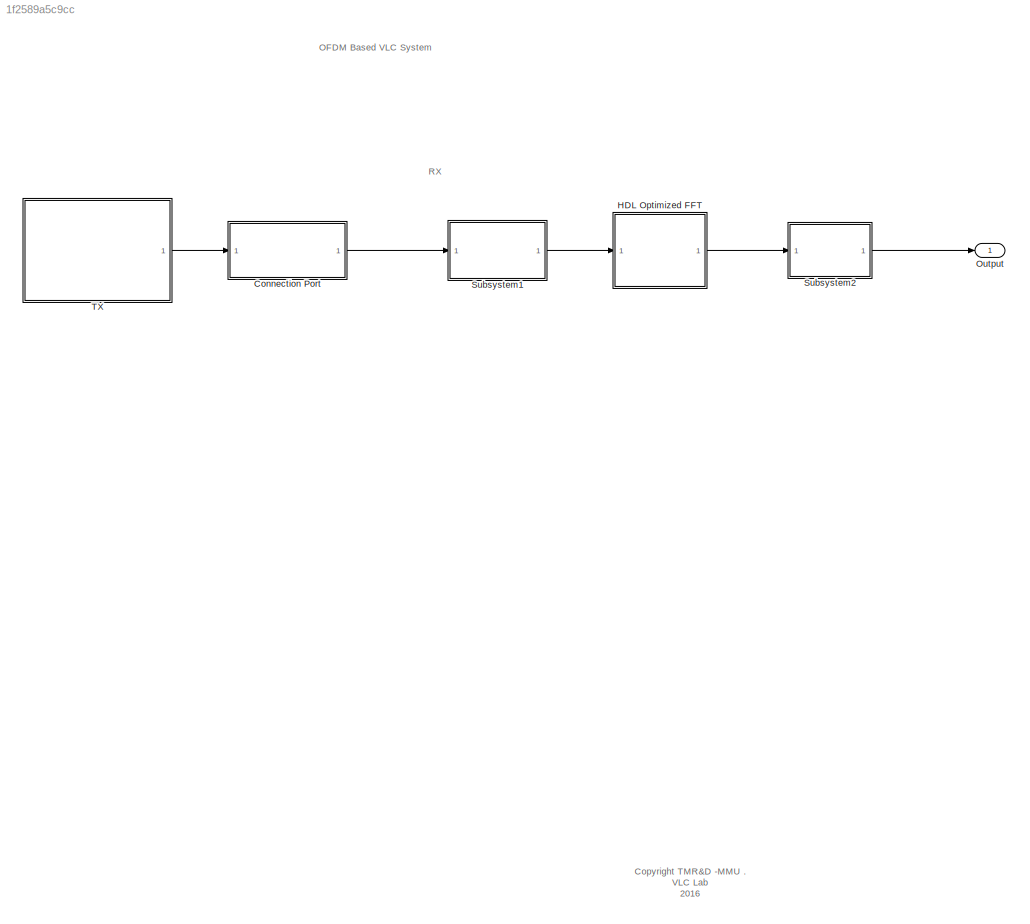
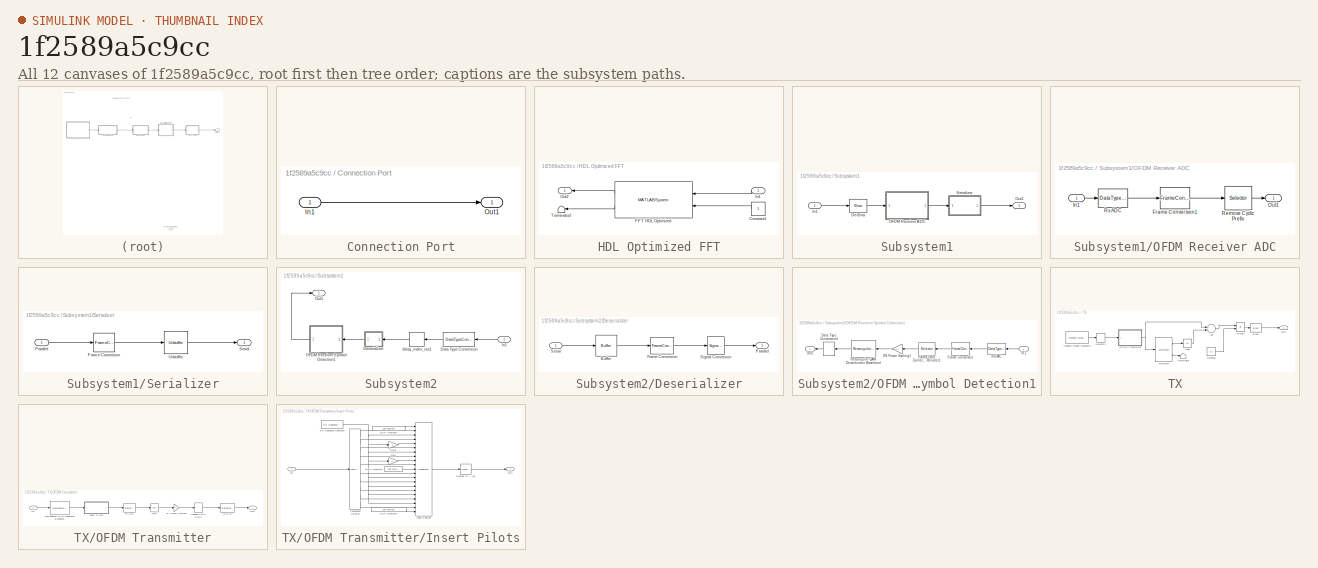
[diagram: thumbnail index - all 12 canvases of the model, root first then tree order]
MODEL slx_1f2589a5c9cc
KIND model
CONFIG AbsTol = auto
CONFIG FixedStep = auto
CONFIG InitFcn = wordLength = 13;\nfracLength  = 6;
CONFIG MaxStep = auto
CONFIG MinStep = auto
CONFIG RelTol = 1e-3
CONFIG SampleTimeConstraint = Unconstrained
CONFIG Solver = FixedStepDiscrete
CONFIG SolverMode = SingleTasking
CONFIG SolverName = FixedStepDiscrete
CONFIG StartTime = 0.0
CONFIG StopTime = 1024
BLOCK [SubSystem] Connection Port
  Ports = [1, 1]
  RequestExecContextInheritance = off
  ShowPortLabels = none
  TreatAsAtomicUnit = on
  Variant = off
BLOCK [Inport] Connection Port/In1
  IconDisplay = Port number
BLOCK [Outport] Connection Port/Out1
  IconDisplay = Port number
BLOCK [SubSystem] HDL Optimized FFT
  Ports = [1, 1]
  RequestExecContextInheritance = off
  ShowPortLabels = none
  Variant = off
BLOCK [Constant] HDL Optimized FFT/Constant1
  OutDataTypeStr = boolean
  SampleTime = 1
BLOCK [MATLABSystem] HDL Optimized FFT/FFT HDL Optimized
  BitReversedOutput = off
  EndOutputPort = off
  FFTLength = 512
  FFTLengthSource = Property
  MaskCapabilities = dspmaskedcaps(gcbh)
  MaskDisplay = disp(['FFT' char(10) 'HDL Optimized' char(10) 'Latency = 1077']);\nport_label('input',1,'dataIn');\nport_label('input',2,'validIn');\nport_label('output',1,'dataOut');\nport_label('output',2,'validOut');
  MaskType = FFT HDL Optimized
  Normalize = off
  OverflowAction = Saturate
  Ports = [2, 2]
  ResetInputPort = off
  RoundingMethod = Floor
  SimulateUsing = Code generation
  StartOutputPort = off
  System = dsp.HDLFFT
  ValidInputPort = on
BLOCK [Inport] HDL Optimized FFT/In1
  IconDisplay = Port number
BLOCK [Outport] HDL Optimized FFT/Out2
  IconDisplay = Port number
BLOCK [Terminator] HDL Optimized FFT/Terminator2
BLOCK [Outport] Output 
  IconDisplay = Port number
BLOCK [SubSystem] Subsystem1
  Ports = [1, 1]
  RequestExecContextInheritance = off
  ShowPortLabels = none
  Variant = off
BLOCK [Bias] Subsystem1/De-Bias
  Bias = -1
  SaturateOnIntegerOverflow = off
BLOCK [Inport] Subsystem1/In1
  IconDisplay = Port number
BLOCK [SubSystem] Subsystem1/OFDM Receiver ADC
  Ports = [1, 1]
  RequestExecContextInheritance = off
  Variant = off
BLOCK [FrameConversion] Subsystem1/OFDM Receiver ADC/Frame Conversion1
  InheritSamplingMode = off
  OutFrame = Sample-based
  Ports = [1, 1]
BLOCK [Inport] Subsystem1/OFDM Receiver ADC/In1
  IconDisplay = Port number
BLOCK [Outport] Subsystem1/OFDM Receiver ADC/Out1
  IconDisplay = Port number
BLOCK [Selector] Subsystem1/OFDM Receiver ADC/Remove Cyclic Prefix
  IndexOptions = Index vector (dialog),Select all
  Indices = [33:544],1
  InputPortWidth = 80
  NumberOfDimensions = 2
  OutputSizes = 1,1
  Ports = [1, 1]
BLOCK [DataTypeConversion] Subsystem1/OFDM Receiver ADC/Rx ADC
  OutDataTypeStr = fixdt(1,wordLength,fracLength)
  RndMeth = Floor
  SaturateOnIntegerOverflow = off
BLOCK [Outport] Subsystem1/Out1
  IconDisplay = Port number
BLOCK [SubSystem] Subsystem1/Serializer
  Ports = [1, 1]
  RequestExecContextInheritance = off
  Variant = off
BLOCK [FrameConversion] Subsystem1/Serializer/Frame Conversion
  InheritSamplingMode = off
  Ports = [1, 1]
BLOCK [Inport] Subsystem1/Serializer/Parallel
  IconDisplay = Port number
BLOCK [Outport] Subsystem1/Serializer/Serial
  IconDisplay = Port number
BLOCK [Unbuffer] Subsystem1/Serializer/Unbuffer
  Ports = [1, 1]
  SampleBasedProcessing = Same as frame based
BLOCK [SubSystem] Subsystem2
  Ports = [1, 1]
  RequestExecContextInheritance = off
  ShowPortLabels = none
  Variant = off
BLOCK [DataTypeConversion] Subsystem2/Data Type Conversion
  OutDataTypeStr = fixdt(1,wordLength,fracLength)
  RndMeth = Floor
  SaturateOnIntegerOverflow = off
BLOCK [SubSystem] Subsystem2/Deserializer
  Ports = [1, 1]
  RequestExecContextInheritance = off
  Variant = off
BLOCK [Buffer] Subsystem2/Deserializer/Buffer
  N = N
  TreatMby1Signals = One channel
BLOCK [FrameConversion] Subsystem2/Deserializer/Frame Conversion
  InheritSamplingMode = off
  OutFrame = Sample-based
  Ports = [1, 1]
BLOCK [Outport] Subsystem2/Deserializer/Parallel
  IconDisplay = Port number
BLOCK [Inport] Subsystem2/Deserializer/Serial
  IconDisplay = Port number
BLOCK [SignalConversion] Subsystem2/Deserializer/Signal Conversion
  ConversionOutput = Contiguous copy
BLOCK [Inport] Subsystem2/In1
  IconDisplay = Port number
BLOCK [SubSystem] Subsystem2/OFDM Receiver Symbol Detection1
  Ports = [1, 1]
  RequestExecContextInheritance = off
  Variant = off
BLOCK [DataTypeConversion] Subsystem2/OFDM Receiver Symbol Detection1/Data Type Conversion4
  OutDataTypeStr = uint8
  RndMeth = Floor
  SaturateOnIntegerOverflow = off
BLOCK [Selector] Subsystem2/OFDM Receiver Symbol Detection1/Extract Data Carriers and Reorder1
  IndexOptions = Index vector (dialog)
  Indices = [317:340 342:389 391:438 440:487 489:512 2:25 27:74 76:123 125:172 174:197]
  InputPortWidth = 512
  OutputSizes = 1
  Ports = [1, 1]
BLOCK [FrameConversion] Subsystem2/OFDM Receiver Symbol Detection1/Frame Conversion
  InheritSamplingMode = off
  Ports = [1, 1]
BLOCK [Inport] Subsystem2/OFDM Receiver Symbol Detection1/In1
  IconDisplay = Port number
BLOCK [Outport] Subsystem2/OFDM Receiver Symbol Detection1/Out1
  IconDisplay = Port number
BLOCK [Gain] Subsystem2/OFDM Receiver Symbol Detection1/RX Power Scaling1
  Gain = 1/4
  OutDataTypeStr = Inherit: Inherit via internal rule
  ParamDataTypeStr = Inherit: Inherit via internal rule
  SaturateOnIntegerOverflow = off
BLOCK [Reference] Subsystem2/OFDM Receiver Symbol Detection1/Rectangular QAM Demodulator Baseband  REF=commdigbbndam3/Rectangular QAM
Demodulator
Baseband
  Ports = [1, 1]
  SourceBlock = commdigbbndam3/Rectangular QAM\nDemodulator\nBaseband
  SourceType = Rectangular QAM Demodulator Baseband
BLOCK [DataTypeConversion] Subsystem2/OFDM Receiver Symbol Detection1/Rx DAC
  OutDataTypeStr = double
  RndMeth = Floor
  SaturateOnIntegerOverflow = off
BLOCK [Outport] Subsystem2/Out1
  IconDisplay = Port number
BLOCK [Delay] Subsystem2/delay_index_out1
  DelayLength = 459
  InputPortMap = u0
  InputProcessing = Inherited
  Ports = [1, 1]
  UserDataPersistent = on
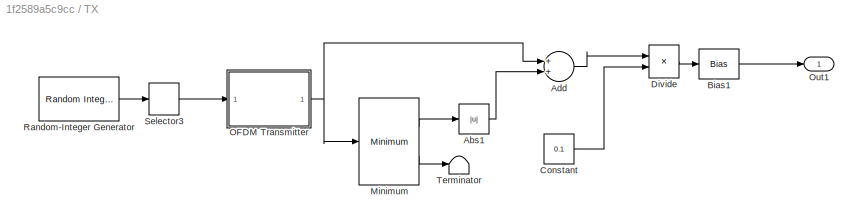
BLOCK [SubSystem] TX
  Ports = [0, 1]
  RequestExecContextInheritance = off
  ShowPortLabels = none
  Variant = off
BLOCK [Abs] TX/Abs1
  SaturateOnIntegerOverflow = off
BLOCK [Sum] TX/Add
  InputSameDT = off
  OutDataTypeStr = Inherit: Inherit via internal rule
  Ports = [2, 1]
  SaturateOnIntegerOverflow = off
BLOCK [Bias] TX/Bias1
  Bias = 0.3
  SaturateOnIntegerOverflow = off
BLOCK [Constant] TX/Constant
  SampleTime = -1
  Value = 0.1
  VectorParams1D = off
BLOCK [Product] TX/Divide
  InputSameDT = off
  OutDataTypeStr = Inherit: Inherit via internal rule
  Ports = [2, 1]
  SaturateOnIntegerOverflow = off
BLOCK [Reference] TX/Minimum  REF=dspstat3/Minimum
  Ports = [1, 2]
  SourceBlock = dspstat3/Minimum
  SourceType = Minimum
  UserDataPersistent = on
BLOCK [SubSystem] TX/OFDM Transmitter
  Ports = [1, 1]
  RequestExecContextInheritance = off
  Variant = off
BLOCK [Selector] TX/OFDM Transmitter/Append Cyclic Prefix
  IndexOptions = Index vector (dialog),Select all
  Indices = [481:512 1:512],1
  InputPortWidth = 256
  NumberOfDimensions = 2
  OutputSizes = 1,1
  Ports = [1, 1]
BLOCK [Reference] TX/OFDM Transmitter/IFFT  REF=dspxfrm3/IFFT
  Ports = [1, 1]
  SourceBlock = dspxfrm3/IFFT
  SourceType = IFFT
BLOCK [Inport] TX/OFDM Transmitter/In1
  IconDisplay = Port number
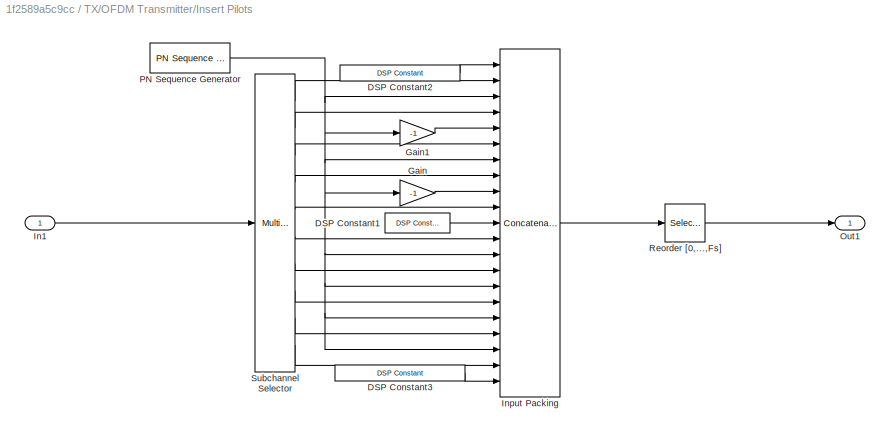
BLOCK [SubSystem] TX/OFDM Transmitter/Insert Pilots
  Ports = [1, 1]
  RequestExecContextInheritance = off
  Variant = off
BLOCK [Reference] TX/OFDM Transmitter/Insert Pilots/DSP Constant1  REF=dspobslib/DSP
Constant
  Ports = [0, 1]
  SourceBlock = dspobslib/DSP\nConstant
  SourceType = DSP Constant
BLOCK [Reference] TX/OFDM Transmitter/Insert Pilots/DSP Constant2  REF=dspobslib/DSP
Constant
  Ports = [0, 1]
  SourceBlock = dspobslib/DSP\nConstant
  SourceType = DSP Constant
BLOCK [Reference] TX/OFDM Transmitter/Insert Pilots/DSP Constant3  REF=dspobslib/DSP
Constant
  Ports = [0, 1]
  SourceBlock = dspobslib/DSP\nConstant
  SourceType = DSP Constant
BLOCK [Gain] TX/OFDM Transmitter/Insert Pilots/Gain
  Gain = -1
  OutDataTypeStr = Inherit: Inherit via internal rule
  ParamDataTypeStr = Inherit: Inherit via internal rule
  SaturateOnIntegerOverflow = off
BLOCK [Gain] TX/OFDM Transmitter/Insert Pilots/Gain1
  Gain = -1
  OutDataTypeStr = Inherit: Inherit via internal rule
  ParamDataTypeStr = Inherit: Inherit via internal rule
  SaturateOnIntegerOverflow = off
BLOCK [Inport] TX/OFDM Transmitter/Insert Pilots/In1
  IconDisplay = Port number
BLOCK [Concatenate] TX/OFDM Transmitter/Insert Pilots/Input Packing
  Mode = Multidimensional array
  NumInputs = 21
  Ports = [21, 1]
BLOCK [Outport] TX/OFDM Transmitter/Insert Pilots/Out1
  IconDisplay = Port number
BLOCK [Reference] TX/OFDM Transmitter/Insert Pilots/PN Sequence Generator  REF=commseqgen2/PN Sequence
Generator
  Ports = [0, 1]
  SourceBlock = commseqgen2/PN Sequence\nGenerator
  SourceType = PN Sequence Generator
BLOCK [Selector] TX/OFDM Transmitter/Insert Pilots/Reorder [0,...,Fs]
  IndexOptions = Index vector (dialog),Select all
  Indices = [257:512 1:256],1
  InputPortWidth = 256
  NumberOfDimensions = 2
  OutputSizes = 1,1
  Ports = [1, 1]
BLOCK [Reference] TX/OFDM Transmitter/Insert Pilots/Subchannel Selector  REF=dspindex/Multiport
Selector
  Ports = [1, 10]
  SourceBlock = dspindex/Multiport\nSelector
  SourceType = Multiport Selector
BLOCK [Outport] TX/OFDM Transmitter/Out1
  IconDisplay = Port number
BLOCK [Reference] TX/OFDM Transmitter/Rectangular QAM Modulator Baseband  REF=commdigbbndam3/Rectangular QAM
Modulator
Baseband
  Ports = [1, 1]
  SourceBlock = commdigbbndam3/Rectangular QAM\nModulator\nBaseband
  SourceType = Rectangular QAM Modulator Baseband
BLOCK [Gain] TX/OFDM Transmitter/TX Power Scaling
  Gain = 4
  OutDataTypeStr = Inherit: Inherit via internal rule
  ParamDataTypeStr = Inherit: Inherit via internal rule
  SaturateOnIntegerOverflow = off
BLOCK [DataTypeConversion] TX/OFDM Transmitter/Tx ADC
  OutDataTypeStr = fixdt(1,wordLength,fracLength)
  RndMeth = Floor
  SaturateOnIntegerOverflow = off
BLOCK [DataTypeConversion] TX/OFDM Transmitter/Tx DAC
  OutDataTypeStr = double
  RndMeth = Floor
  SaturateOnIntegerOverflow = off
BLOCK [Outport] TX/Out1
  IconDisplay = Port number
BLOCK [Reference] TX/Random-Integer Generator  REF=commrandsrc2/Random Integer
Generator
  Ports = [0, 1]
  SourceBlock = commrandsrc2/Random Integer\nGenerator
  SourceType = Random Integer Generator
BLOCK [Selector] TX/Selector3
  IndexOptions = Index vector (dialog)
  Indices = [1:384]
  InputPortWidth = 512
  OutputSizes = 1
  Ports = [1, 1]
BLOCK [Terminator] TX/Terminator
ANNOTATION (root): RX
ANNOTATION (root): OFDM Based VLC System
ANNOTATION (root): <copyright redacted>
LINE Connection Port/In1:1 -> Connection Port/Out1:1
LINE Connection Port:1 -> Subsystem1:1
LINE HDL Optimized FFT/Constant1:1 -> HDL Optimized FFT/FFT HDL Optimized:2
LINE HDL Optimized FFT/FFT HDL Optimized:1 -> HDL Optimized FFT/Out2:1
LINE HDL Optimized FFT/FFT HDL Optimized:2 -> HDL Optimized FFT/Terminator2:1
LINE HDL Optimized FFT/In1:1 -> HDL Optimized FFT/FFT HDL Optimized:1
LINE HDL Optimized FFT:1 -> Subsystem2:1
LINE Subsystem1/De-Bias:1 -> Subsystem1/OFDM Receiver ADC:1
LINE Subsystem1/In1:1 -> Subsystem1/De-Bias:1
LINE Subsystem1/OFDM Receiver ADC/Frame Conversion1:1 -> Subsystem1/OFDM Receiver ADC/Remove Cyclic Prefix:1
LINE Subsystem1/OFDM Receiver ADC/In1:1 -> Subsystem1/OFDM Receiver ADC/Rx ADC:1
LINE Subsystem1/OFDM Receiver ADC/Remove Cyclic Prefix:1 -> Subsystem1/OFDM Receiver ADC/Out1:1
LINE Subsystem1/OFDM Receiver ADC/Rx ADC:1 -> Subsystem1/OFDM Receiver ADC/Frame Conversion1:1
LINE Subsystem1/OFDM Receiver ADC:1 -> Subsystem1/Serializer:1
LINE Subsystem1/Serializer/Frame Conversion:1 -> Subsystem1/Serializer/Unbuffer:1
LINE Subsystem1/Serializer/Parallel:1 -> Subsystem1/Serializer/Frame Conversion:1
LINE Subsystem1/Serializer/Unbuffer:1 -> Subsystem1/Serializer/Serial:1
LINE Subsystem1/Serializer:1 -> Subsystem1/Out1:1
LINE Subsystem1:1 -> HDL Optimized FFT:1
LINE Subsystem2/Data Type Conversion:1 -> Subsystem2/delay_index_out1:1
LINE Subsystem2/Deserializer/Buffer:1 -> Subsystem2/Deserializer/Frame Conversion:1
LINE Subsystem2/Deserializer/Frame Conversion:1 -> Subsystem2/Deserializer/Signal Conversion:1
LINE Subsystem2/Deserializer/Serial:1 -> Subsystem2/Deserializer/Buffer:1
LINE Subsystem2/Deserializer/Signal Conversion:1 -> Subsystem2/Deserializer/Parallel:1
LINE Subsystem2/Deserializer:1 -> Subsystem2/OFDM Receiver Symbol Detection1:1
LINE Subsystem2/In1:1 -> Subsystem2/Data Type Conversion:1
LINE Subsystem2/OFDM Receiver Symbol Detection1/Data Type Conversion4:1 -> Subsystem2/OFDM Receiver Symbol Detection1/Out1:1
LINE Subsystem2/OFDM Receiver Symbol Detection1/Extract Data Carriers and Reorder1:1 -> Subsystem2/OFDM Receiver Symbol Detection1/RX Power Scaling1:1
LINE Subsystem2/OFDM Receiver Symbol Detection1/Frame Conversion:1 -> Subsystem2/OFDM Receiver Symbol Detection1/Extract Data Carriers and Reorder1:1
LINE Subsystem2/OFDM Receiver Symbol Detection1/In1:1 -> Subsystem2/OFDM Receiver Symbol Detection1/Rx DAC:1
LINE Subsystem2/OFDM Receiver Symbol Detection1/RX Power Scaling1:1 -> Subsystem2/OFDM Receiver Symbol Detection1/Rectangular QAM Demodulator Baseband:1
LINE Subsystem2/OFDM Receiver Symbol Detection1/Rectangular QAM Demodulator Baseband:1 -> Subsystem2/OFDM Receiver Symbol Detection1/Data Type Conversion4:1
LINE Subsystem2/OFDM Receiver Symbol Detection1/Rx DAC:1 -> Subsystem2/OFDM Receiver Symbol Detection1/Frame Conversion:1
LINE Subsystem2/OFDM Receiver Symbol Detection1:1 -> Subsystem2/Out1:1
LINE Subsystem2/delay_index_out1:1 -> Subsystem2/Deserializer:1
LINE Subsystem2:1 -> Output :1
LINE TX/Abs1:1 -> TX/Add:2
LINE TX/Add:1 -> TX/Divide:1
LINE TX/Bias1:1 -> TX/Out1:1
LINE TX/Constant:1 -> TX/Divide:2
LINE TX/Divide:1 -> TX/Bias1:1
LINE TX/Minimum:1 -> TX/Abs1:1
LINE TX/Minimum:2 -> TX/Terminator:1
LINE TX/OFDM Transmitter/Append Cyclic Prefix:1 -> TX/OFDM Transmitter/Tx DAC:1
LINE TX/OFDM Transmitter/IFFT:1 -> TX/OFDM Transmitter/TX Power Scaling:1
LINE TX/OFDM Transmitter/In1:1 -> TX/OFDM Transmitter/Rectangular QAM Modulator Baseband:1
LINE TX/OFDM Transmitter/Insert Pilots/DSP Constant1:1 -> TX/OFDM Transmitter/Insert Pilots/Input Packing:11
LINE TX/OFDM Transmitter/Insert Pilots/DSP Constant2:1 -> TX/OFDM Transmitter/Insert Pilots/Input Packing:1
LINE TX/OFDM Transmitter/Insert Pilots/DSP Constant3:1 -> TX/OFDM Transmitter/Insert Pilots/Input Packing:21
LINE TX/OFDM Transmitter/Insert Pilots/Gain1:1 -> TX/OFDM Transmitter/Insert Pilots/Input Packing:5
LINE TX/OFDM Transmitter/Insert Pilots/Gain:1 -> TX/OFDM Transmitter/Insert Pilots/Input Packing:9
LINE TX/OFDM Transmitter/Insert Pilots/In1:1 -> TX/OFDM Transmitter/Insert Pilots/Subchannel Selector:1
LINE TX/OFDM Transmitter/Insert Pilots/Input Packing:1 -> TX/OFDM Transmitter/Insert Pilots/Reorder [0,...,Fs]:1
NET TX/OFDM Transmitter/Insert Pilots/PN Sequence Generator:1 -> TX/OFDM Transmitter/Insert Pilots/Gain1:1, TX/OFDM Transmitter/Insert Pilots/Gain:1, TX/OFDM Transmitter/Insert Pilots/Input Packing:13, TX/OFDM Transmitter/Insert Pilots/Input Packing:15, TX/OFDM Transmitter/Insert Pilots/Input Packing:17, TX/OFDM Transmitter/Insert Pilots/Input Packing:19, TX/OFDM Transmitter/Insert Pilots/Input Packing:3, TX/OFDM Transmitter/Insert Pilots/Input Packing:7
LINE TX/OFDM Transmitter/Insert Pilots/Reorder [0,...,Fs]:1 -> TX/OFDM Transmitter/Insert Pilots/Out1:1
LINE TX/OFDM Transmitter/Insert Pilots/Subchannel Selector:1 -> TX/OFDM Transmitter/Insert Pilots/Input Packing:2
LINE TX/OFDM Transmitter/Insert Pilots/Subchannel Selector:10 -> TX/OFDM Transmitter/Insert Pilots/Input Packing:20
LINE TX/OFDM Transmitter/Insert Pilots/Subchannel Selector:2 -> TX/OFDM Transmitter/Insert Pilots/Input Packing:4
LINE TX/OFDM Transmitter/Insert Pilots/Subchannel Selector:3 -> TX/OFDM Transmitter/Insert Pilots/Input Packing:6
LINE TX/OFDM Transmitter/Insert Pilots/Subchannel Selector:4 -> TX/OFDM Transmitter/Insert Pilots/Input Packing:8
LINE TX/OFDM Transmitter/Insert Pilots/Subchannel Selector:5 -> TX/OFDM Transmitter/Insert Pilots/Input Packing:10
LINE TX/OFDM Transmitter/Insert Pilots/Subchannel Selector:6 -> TX/OFDM Transmitter/Insert Pilots/Input Packing:12
LINE TX/OFDM Transmitter/Insert Pilots/Subchannel Selector:7 -> TX/OFDM Transmitter/Insert Pilots/Input Packing:14
LINE TX/OFDM Transmitter/Insert Pilots/Subchannel Selector:8 -> TX/OFDM Transmitter/Insert Pilots/Input Packing:16
LINE TX/OFDM Transmitter/Insert Pilots/Subchannel Selector:9 -> TX/OFDM Transmitter/Insert Pilots/Input Packing:18
LINE TX/OFDM Transmitter/Insert Pilots:1 -> TX/OFDM Transmitter/Tx ADC:1
LINE TX/OFDM Transmitter/Rectangular QAM Modulator Baseband:1 -> TX/OFDM Transmitter/Insert Pilots:1
LINE TX/OFDM Transmitter/TX Power Scaling:1 -> TX/OFDM Transmitter/Append Cyclic Prefix:1
LINE TX/OFDM Transmitter/Tx ADC:1 -> TX/OFDM Transmitter/IFFT:1
LINE TX/OFDM Transmitter/Tx DAC:1 -> TX/OFDM Transmitter/Out1:1
NET TX/OFDM Transmitter:1 -> TX/Add:1, TX/Minimum:1
LINE TX/Random-Integer Generator:1 -> TX/Selector3:1
LINE TX/Selector3:1 -> TX/OFDM Transmitter:1
LINE TX:1 -> Connection Port:1
note: NET lines group one-source signal fan-out (src -> all destinations, sorted); 1:1 wires keep LINE
